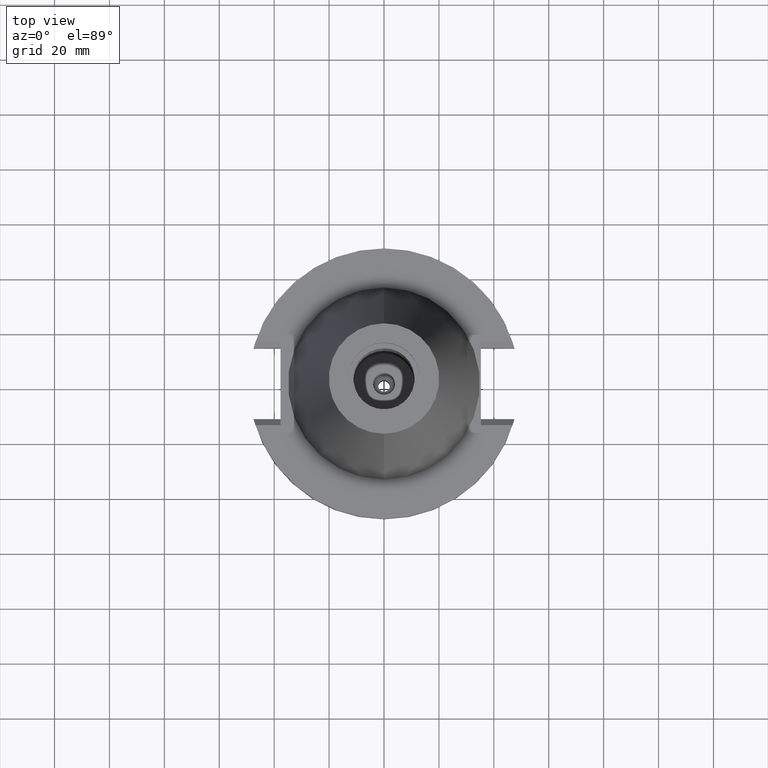
[diagram: clean part render]
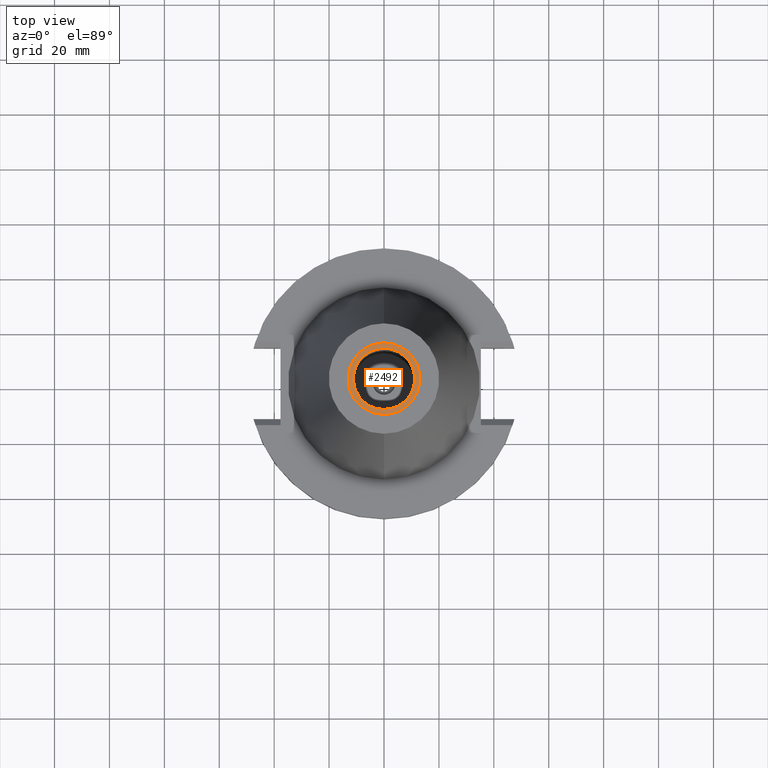
[diagram: same view with one face highlighted and labeled with its STEP entity id]
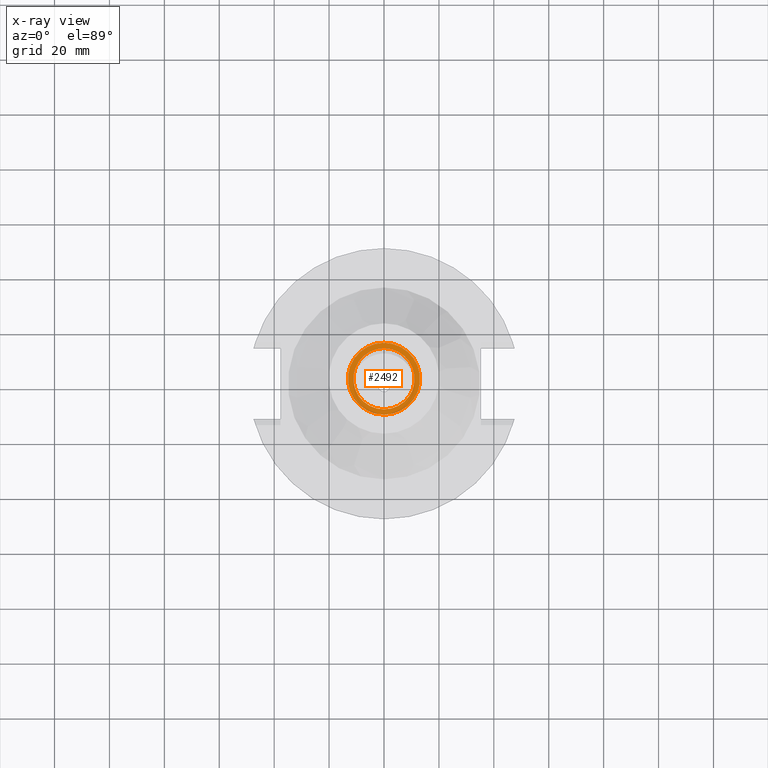
[diagram: x-ray of the same camera — body ghosted, the highlighted face saturated]
A machine part, top view. The second image highlights one B-rep face of the part: STEP entity #2492.
The next image is the same camera in x-ray: the body ghosted, the highlighted face saturated — about 0% of this face is hidden behind the body in this view.
In plain terms, the highlighted planar face has unit normal (0, 0, 1).
Its self-contained STEP definition (entity closure, byte-faithful):
#1210=CARTESIAN_POINT('',(0.E0,0.E0,9.525E1));
#1211=DIRECTION('',(0.E0,0.E0,-1.E0));
#1212=DIRECTION('',(0.E0,-1.E0,0.E0));
#1213=AXIS2_PLACEMENT_3D('',#1210,#1211,#1212);
#1218=CARTESIAN_POINT('',(0.E0,0.E0,9.525E1));
#1219=DIRECTION('',(0.E0,0.E0,-1.E0));
#1220=DIRECTION('',(0.E0,1.E0,0.E0));
#1221=AXIS2_PLACEMENT_3D('',#1218,#1219,#1220);
#1226=CARTESIAN_POINT('',(0.E0,0.E0,9.525E1));
#1227=DIRECTION('',(0.E0,0.E0,1.E0));
#1228=DIRECTION('',(0.E0,-1.E0,0.E0));
#1229=AXIS2_PLACEMENT_3D('',#1226,#1227,#1228);
#1234=CARTESIAN_POINT('',(0.E0,0.E0,9.525E1));
#1235=DIRECTION('',(0.E0,0.E0,1.E0));
#1236=DIRECTION('',(0.E0,1.E0,0.E0));
#1237=AXIS2_PLACEMENT_3D('',#1234,#1235,#1236);
#1408=CARTESIAN_POINT('',(0.E0,1.115E1,9.525E1));
#1409=VERTEX_POINT('',#1408);
#1410=CARTESIAN_POINT('',(0.E0,-1.115E1,9.525E1));
#1411=VERTEX_POINT('',#1410);
#1412=CARTESIAN_POINT('',(0.E0,-1.3115E1,9.525E1));
#1413=CARTESIAN_POINT('',(0.E0,1.3115E1,9.525E1));
#1414=VERTEX_POINT('',#1412);
#1415=VERTEX_POINT('',#1413);
#2477=CARTESIAN_POINT('',(0.E0,0.E0,9.525E1));
#2478=DIRECTION('',(0.E0,0.E0,1.E0));
#2479=DIRECTION('',(0.E0,1.E0,0.E0));
#2480=AXIS2_PLACEMENT_3D('',#2477,#2478,#2479);
#2481=PLANE('',#2480);
#2483=ORIENTED_EDGE('',*,*,#2482,.T.);
#2485=ORIENTED_EDGE('',*,*,#2484,.T.);
#2486=EDGE_LOOP('',(#2483,#2485));
#2487=FACE_OUTER_BOUND('',#2486,.F.);
#2488=ORIENTED_EDGE('',*,*,#2456,.T.);
#2489=ORIENTED_EDGE('',*,*,#2472,.T.);
#2490=EDGE_LOOP('',(#2488,#2489));
#2491=FACE_BOUND('',#2490,.F.);
#1214=CIRCLE('',#1213,1.3115E1);
#1222=CIRCLE('',#1221,1.3115E1);
#1230=CIRCLE('',#1229,1.115E1);
#1238=CIRCLE('',#1237,1.115E1);
#2456=EDGE_CURVE('',#1411,#1409,#1230,.T.);
#2472=EDGE_CURVE('',#1409,#1411,#1238,.T.);
#2482=EDGE_CURVE('',#1414,#1415,#1214,.T.);
#2484=EDGE_CURVE('',#1415,#1414,#1222,.T.);
#2492=ADVANCED_FACE('',(#2487,#2491),#2481,.T.);